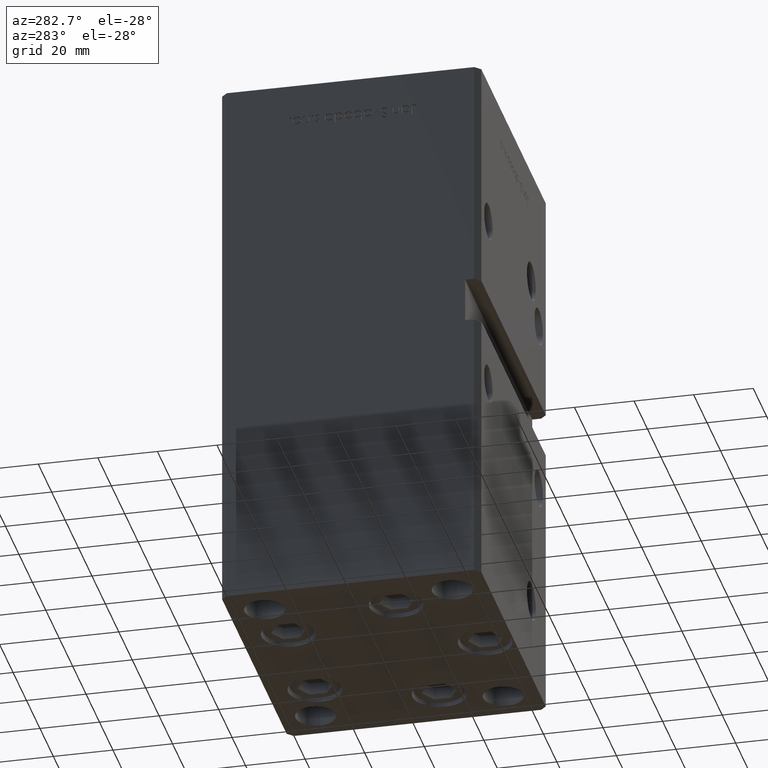
[diagram: clean part render]
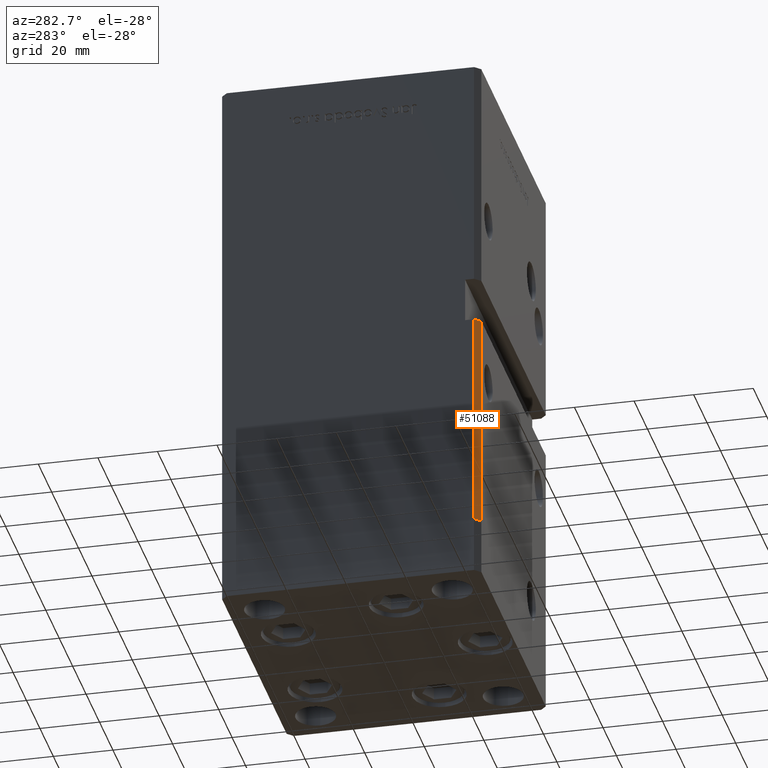
[diagram: same view with one face highlighted and labeled with its STEP entity id]
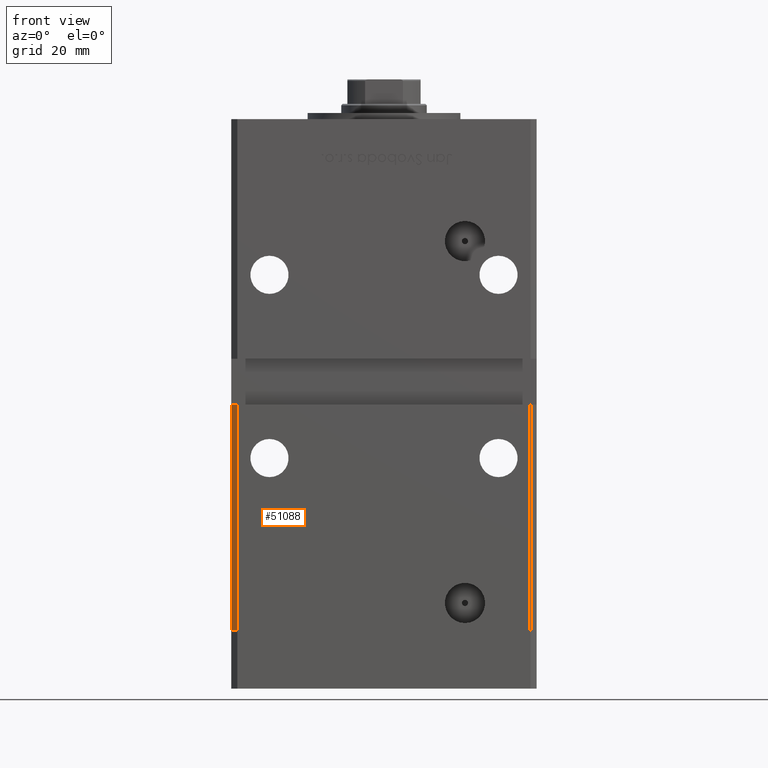
[diagram: same view with one face highlighted and labeled with its STEP entity id]
A machine part, auxiliary view. The second image highlights one B-rep face of the part: STEP entity #51088.
A second angle (front view) of the same face is appended — the face is thin or edge-on in the first view.
In plain terms, the highlighted planar face has unit normal (0.7071, 0.7071, 0).
Its self-contained STEP definition (entity closure, byte-faithful):
#82 = EDGE_CURVE ( 'NONE', #2722, #38925, #8065, .T. ) ;
#2722 = VERTEX_POINT ( 'NONE', #45201 ) ;
#3470 = ORIENTED_EDGE ( 'NONE', *, *, #36700, .T. ) ;
#6552 = FACE_OUTER_BOUND ( 'NONE', #10408, .T. ) ;
#6865 = CARTESIAN_POINT ( 'NONE',  ( -49.99999999999998579, -41.49999999999999289, 0.000000000000000000 ) ) ;
#7920 = CARTESIAN_POINT ( 'NONE',  ( -47.99999999999998579, -43.50000000000000000, 0.000000000000000000 ) ) ;
#8065 = LINE ( 'NONE', #49201, #39406 ) ;
#8855 = EDGE_CURVE ( 'NONE', #2722, #46646, #41344, .T. ) ;
#10408 = EDGE_LOOP ( 'NONE', ( #34390, #51506, #3470, #17218 ) ) ;
#11258 = CARTESIAN_POINT ( 'NONE',  ( -49.99999999999998579, -41.49999999999999289, 74.00000000000000000 ) ) ;
#11347 = CARTESIAN_POINT ( 'NONE',  ( -49.99999999999998579, -41.49999999999999289, 148.5000000000000000 ) ) ;
#11831 = DIRECTION ( 'NONE',  ( -0.000000000000000000, -0.000000000000000000, -1.000000000000000000 ) ) ;
#13132 = CARTESIAN_POINT ( 'NONE',  ( -49.99999999999998579, -41.49999999999999289, 74.00000000000000000 ) ) ;
#14924 = LINE ( 'NONE', #6865, #16699 ) ;
#16699 = VECTOR ( 'NONE', #23240, 1000.000000000000114 ) ;
#17218 = ORIENTED_EDGE ( 'NONE', *, *, #36508, .T. ) ;
#23240 = DIRECTION ( 'NONE',  ( 0.7071067811865474617, -0.7071067811865474617, 0.000000000000000000 ) ) ;
#23457 = DIRECTION ( 'NONE',  ( 0.7071067811865475727, 0.7071067811865475727, -0.000000000000000000 ) ) ;
#24157 = VECTOR ( 'NONE', #25223, 1000.000000000000114 ) ;
#25223 = DIRECTION ( 'NONE',  ( -0.7071067811865474617, 0.7071067811865474617, 0.000000000000000000 ) ) ;
#27765 = PLANE ( 'NONE',  #39330 ) ;
#28713 = VECTOR ( 'NONE', #51691, 1000.000000000000000 ) ;
#29488 = VERTEX_POINT ( 'NONE', #52998 ) ;
#34390 = ORIENTED_EDGE ( 'NONE', *, *, #82, .F. ) ;
#35558 = DIRECTION ( 'NONE',  ( -0.7071067811865474617, 0.7071067811865474617, 0.000000000000000000 ) ) ;
#36508 = EDGE_CURVE ( 'NONE', #29488, #38925, #14924, .T. ) ;
#36700 = EDGE_CURVE ( 'NONE', #46646, #29488, #40113, .T. ) ;
#38925 = VERTEX_POINT ( 'NONE', #7920 ) ;
#39330 = AXIS2_PLACEMENT_3D ( 'NONE', #47946, #23457, #35558 ) ;
#39406 = VECTOR ( 'NONE', #11831, 1000.000000000000000 ) ;
#40113 = LINE ( 'NONE', #11347, #28713 ) ;
#41344 = LINE ( 'NONE', #13132, #24157 ) ;
#45201 = CARTESIAN_POINT ( 'NONE',  ( -47.99999999999998579, -43.50000000000000000, 74.00000000000000000 ) ) ;
#46646 = VERTEX_POINT ( 'NONE', #11258 ) ;
#47946 = CARTESIAN_POINT ( 'NONE',  ( -49.99999999999998579, -41.49999999999999289, 148.5000000000000000 ) ) ;
#49201 = CARTESIAN_POINT ( 'NONE',  ( -47.99999999999998579, -43.50000000000000000, 148.5000000000000000 ) ) ;
#51088 = ADVANCED_FACE ( 'NONE', ( #6552 ), #27765, .F. ) ;
#51506 = ORIENTED_EDGE ( 'NONE', *, *, #8855, .T. ) ;
#51691 = DIRECTION ( 'NONE',  ( -0.000000000000000000, -0.000000000000000000, -1.000000000000000000 ) ) ;
#52998 = CARTESIAN_POINT ( 'NONE',  ( -49.99999999999998579, -41.49999999999999289, 0.000000000000000000 ) ) ;